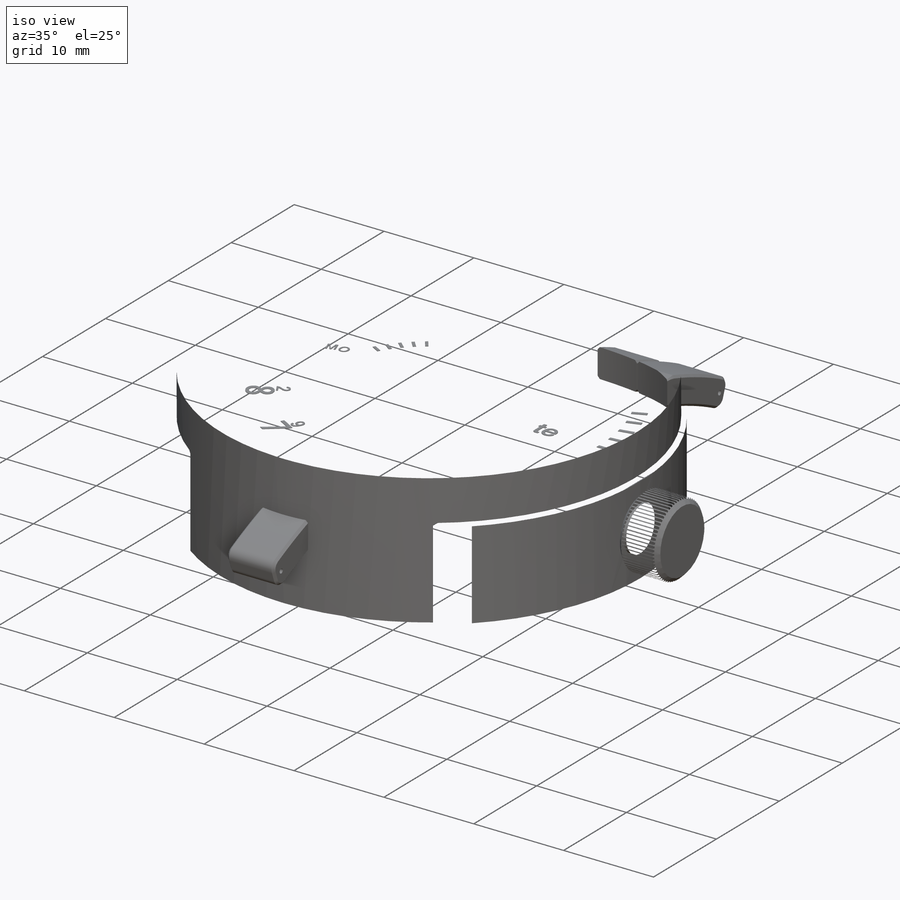
[diagram: iso view]
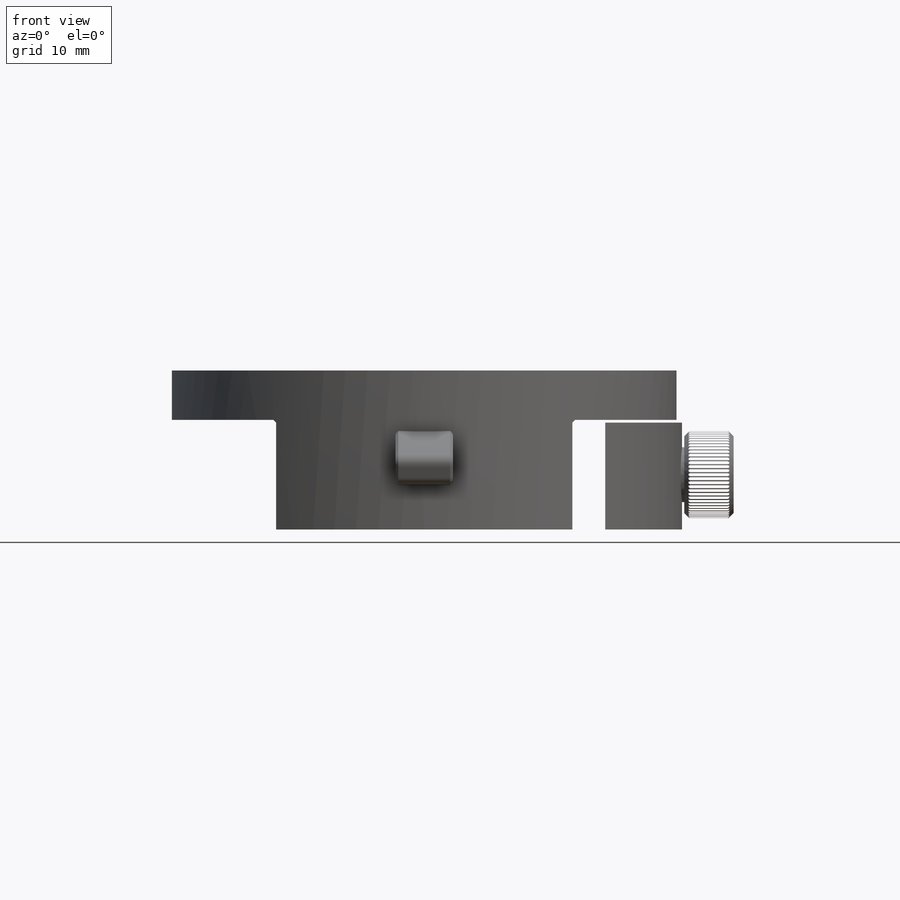
[diagram: front view]
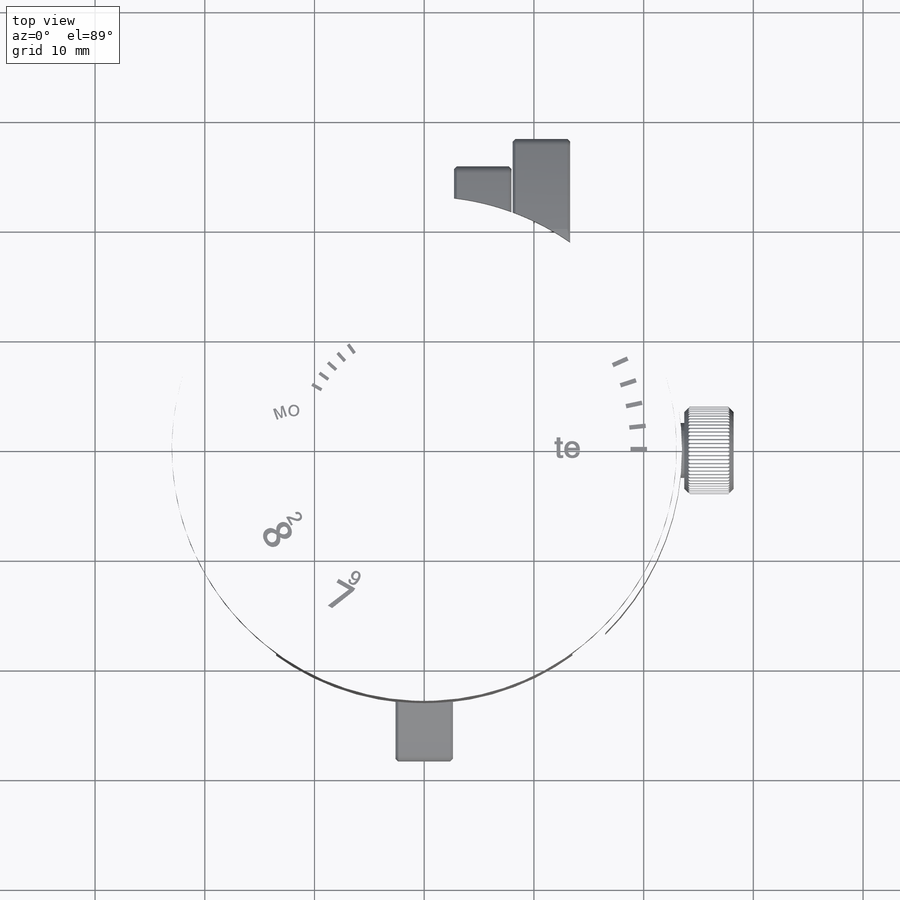
[diagram: top view]
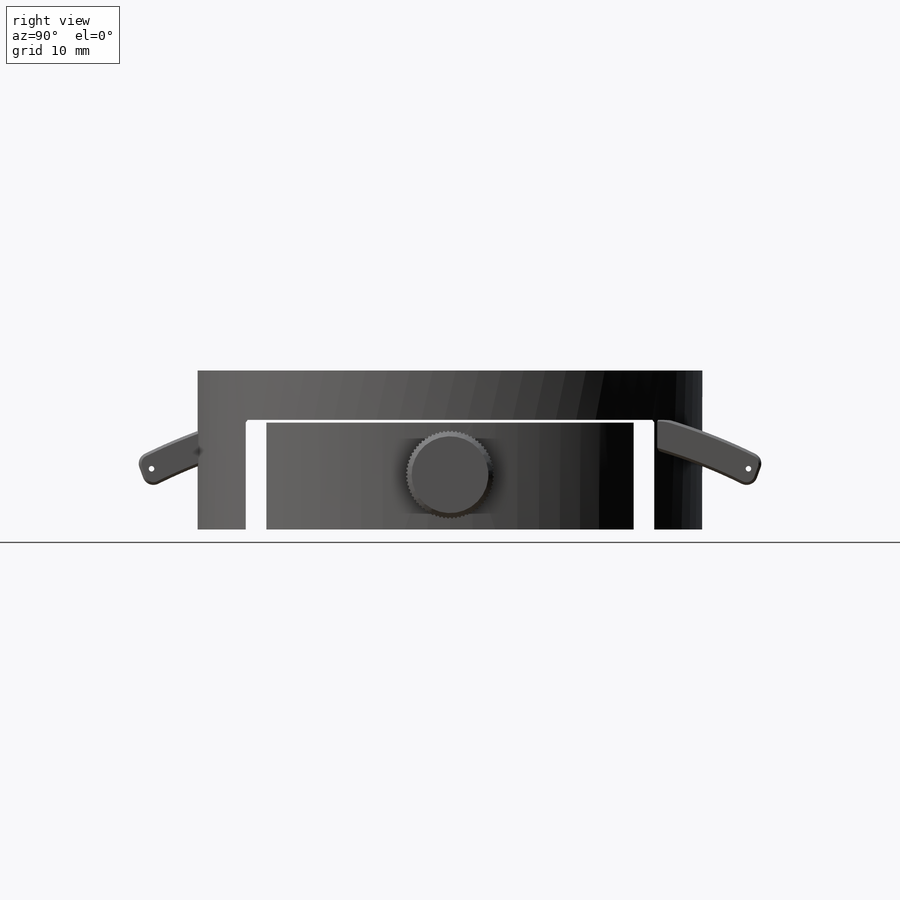
[diagram: right view]
SOLIDWORKS PART (.sldprt)
format: sldprt  version: not decoded by parser v0  size: 13,915,136 bytes
history: native  units: mm
features: sketch x46, extrude x32, cut_extrude x11, pattern_circular x10, chamfer x9, fillet x7, boolean_combine x2, material x1, plane x1, mirror x1 (+12 scaffold rows collapsed; 1 parser-record rows omitted)
feature tree (133):
  scaffold x12  (default folders/planes/origin — collapsed)
  material  "Material <not specified>"
  sketch  "Sketch1"  dims[D1=46.0mm]
  extrude  "Extrude1"  Depth=15mm
  sketch  "Sketch2"  dims[c1.D7=15.0mm c1.D1=5.0mm c1.D2=55.0mm c1.D3=1.0mm c1.D4=52.5mm c1.D5=~19.72274mm c2.D5=20.0deg c2.D6=~26.303369mm c3.D6=40.0deg c3.D8=4.0mm]
  extrude  "Extrude2"  Depth=33mm
  sketch  "Sketch3"  dims[D1=3.0mm]
  cut_extrude  "Extrude3"  [1 undecoded]
  boolean_combine  "Combine1"
  sketch  "Sketch4"  dims[D1=0.5mm]
  extrude  "Extrude4"  [1 undecoded]
  sketch  "Sketch5"  dims[D1=2.0mm]
  extrude  "Extrude5"  Depth=1mm
  chamfer  "Chamfer1"  Distance=0.5mm Angle=45deg
  chamfer  "Chamfer2"  Distance=0.25mm Angle=45deg
  sketch  "Sketch6"  dims[D1=0.2mm D2=0.2mm D3=1.5mm D4=1.5mm]
  cut_extrude  "Extrude6"  Depth=0.75mm
  pattern_circular  "CirPattern1"  Count=6 Angle=360deg
  sketch  "Sketch7"  dims[D1=41.0mm]
  cut_extrude  "Extrude7"  Depth=3mm
  chamfer  "Chamfer3"  Distance=0.5mm Angle=45deg
  sketch  "Sketch10"  dims[D1=35.5mm]
  sketch  "Sketch11"  dims[D1=1.5mm D2=0.4mm D3=0.2mm]
  extrude  "Extrude11"  Depth=0.05mm
  pattern_circular  "CirPattern2"  Count=31 Angle=180deg
  pattern_circular  "CirPattern7"  Count=31 Angle=180deg
  pattern_circular  "CirPattern3"  Count=6 Angle=180deg
  sketch  "Sketch26"  dims[D1=10.0mm D2=12.0mm]
  pattern_circular  "CirPattern8"  Count=6 Angle=180deg
  sketch  "Sketch12"  dims[c1.D1=7.0mm c1.D2=1.0mm c1.D3=0.3mm c1.D4=~7.000179mm c2.D1=7.0mm]
  extrude  "Extrude12"  Depth=0.05mm
  pattern_circular  "CirPattern4"  Count=31 Angle=180deg
  pattern_circular  "CirPattern9"  Count=31 Angle=180deg
  parser-record x1  (decoder bookkeeping rows leaked as tree rows — omitted from the tree; the rows remain in map.json)
  sketch  "Sketch13"  dims[D1=12.5mm]
  extrude  "Number 12"  Depth=0.05mm
  sketch  "Number Position Sketch"  dims[c1.D1=25.0mm c1.D2=33.5mm c1.D7=28.0mm c1.D3=33.5mm c2.D3=30.0deg c2.D4=~17.812532mm c3.D4=30.0deg c3.D5=~17.687093mm c4.D5=30.0deg c4.D6=33.5mm c5.D6=30.0deg]
  sketch  "Sketch14"  dims[D1=16.75mm]
  extrude  "Number 6"  Depth=0.05mm
  sketch  "Sketch17"  dims[D1=0.8mm]
  extrude  "Superdry (3)"  Depth=0.05mm
  sketch  "Sketch18"
  extrude  "Number 1"  Depth=0.05mm
  sketch  "Sketch19"
  extrude  "Number 2"  Depth=0.05mm
  pattern_circular  "CirPattern5"  Count=7 Angle=180deg
  pattern_circular  "CirPattern10"  Count=6 Angle=180deg
  sketch  "Sketch20"
  extrude  "Number 4"  Depth=0.05mm
  sketch  "Sketch21"
  extrude  "Number 5"  Depth=0.05mm
  sketch  "Sketch22"
  extrude  "Number 7"  Depth=0.05mm
  sketch  "Sketch23"
  extrude  "Number 8"  Depth=0.05mm
  sketch  "Sketch24"
  extrude  "Number 10"  Depth=0.05mm
  sketch  "Sketch25"
  extrude  "Number 11"  Depth=0.05mm
  sketch  "Sketch27"
  extrude  "Number 13"  Depth=0.05mm
  sketch  "Sketch28"
  extrude  "Number 14"  Depth=0.05mm
  sketch  "Sketch29"
  extrude  "Number 16"  Depth=0.05mm
  sketch  "Sketch30"
  extrude  "Number 17"  Depth=0.05mm
  sketch  "Sketch31"
  extrude  "Number 19"  Depth=0.05mm
  sketch  "Sketch32"
  extrude  "Number 20"  Depth=0.05mm
  sketch  "Sketch33"
  extrude  "Number 22"  Depth=0.05mm
  sketch  "Sketch34"
  extrude  "Number 23"  Depth=0.05mm
  extrude  "Date Bezel"  Depth=0.2mm
  sketch  "Sketch35"  dims[D1=5.5mm]
  cut_extrude  "Date"  [1 undecoded]
  fillet  "Fillet1"  Radius=0.2mm
  sketch  "Sketch36"  dims[c1.D1=0.3mm c1.D2=3.05mm c2.D2=60.0deg c2.D3=~1.869141mm c3.D3=60.0deg]
  extrude  "Japan Movement"  Depth=0.05mm
  sketch  "Sketch37"  dims[D1=0.2mm]
  extrude  "Hand spiggot"  Depth=1mm
  plane  "Plane1"
  sketch  "Sketch38"  dims[D1=8.0mm]
  extrude  "Crown/Pushers"  Depth=4.5mm
  chamfer  "Chamfer4"  Distance=0.5mm Angle=45deg
  sketch  "Sketch39"  dims[D1=1.0mm]
  extrude  "Extrude39"  Depth=1mm
  sketch  "Sketch41"
  extrude  "Extrude40"  Depth=0.05mm
  sketch  "Sketch42"
  boolean_combine  "Combine3"
  sketch  "Sketch46"  dims[D2=4.0mm D1=3.0mm]
  extrude  "Extrude44"  Depth=0.2mm
  sketch  "Sketch49"  dims[D1=0.1mm]
  cut_extrude  "Extrude47"  [1 undecoded]
  sketch  "Sketch47"  dims[c1.D1=0.1mm c1.D2=5.24mm c1.D3=0.1mm c1.D4=5.24mm c1.D5=0.1mm c1.D6=5.24mm c1.D7=0.1mm c1.D8=5.24mm c1.D9=5.24mm c2.D2=5.24mm]
  cut_extrude  "Extrude45"  [1 undecoded]
  sketch  "Sketch48"  dims[c1.D1=2.5mm c1.D2=2.5mm c2.D1=~2.497405mm]
  cut_extrude  "Extrude46"  [1 undecoded]
  sketch  "Sketch50"  dims[D1=4.0mm]
  cut_extrude  "Extrude48"  [1 undecoded]
  sketch  "Sketch51"
  cut_extrude  "Extrude49"  [1 undecoded]
  fillet  "Fillet3"  Radius=1mm
  fillet  "Fillet4"  Radius=1mm
  fillet  "Fillet5"  Radius=1mm
  fillet  "Fillet6"  Radius=1mm
  fillet  "Fillet7"  Radius=1mm
  chamfer  "Chamfer5"  Distance=0.25mm Angle=45deg
  chamfer  "Chamfer6"  Distance=0.25mm Angle=45deg
  chamfer  "Chamfer7"  Distance=0.25mm Angle=45deg
  chamfer  "Chamfer8"  Distance=0.25mm Angle=45deg
  chamfer  "Chamfer9"  Distance=0.25mm Angle=45deg
  sketch  "Sketch52"  dims[D1=0.5mm D2=0.75mm]
  cut_extrude  "Extrude50"  [1 undecoded]
  mirror  "Mirror1"
  sketch  "Sketch53"  dims[c1.D1=0.2mm c1.D2=4.0mm c2.D2=30.0deg c2.D1=0.2mm c3.D2=0.1mm]
  cut_extrude  "Extrude51"  [1 undecoded]
  fillet  "Fillet8"  Radius=0.03mm
  pattern_circular  "CirPattern6"  Count=68 Angle=360deg
decode coverage: 86 of 118 modeling features carry decoded parameters
note: ~ marks probable driven/reference dimensions
note: 10 parameter values undecoded
summary: no parameter record found for 10 features
note: suppression state not decoded; provenance and decode notes live in map.json
